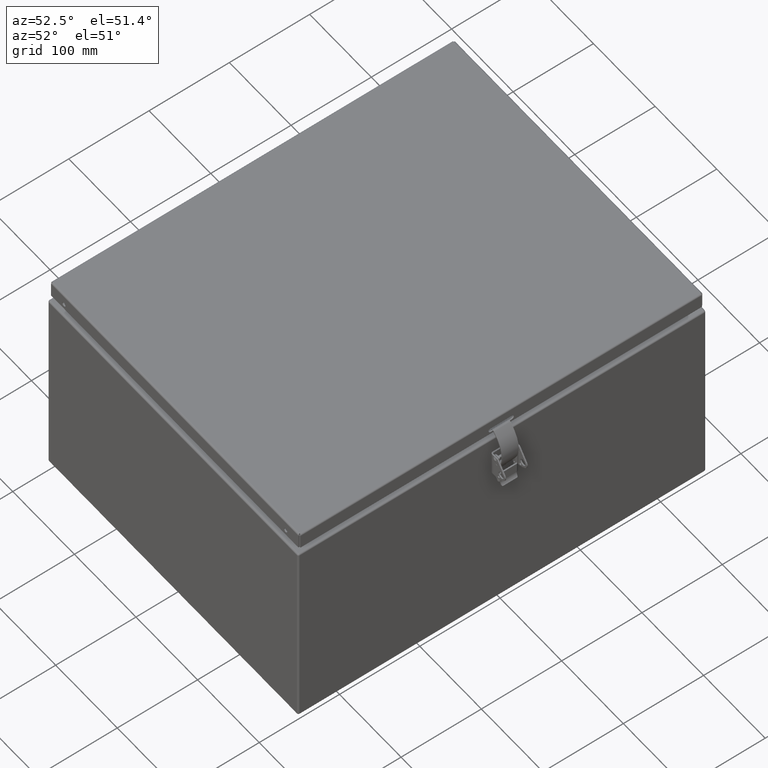
[diagram: clean part render]
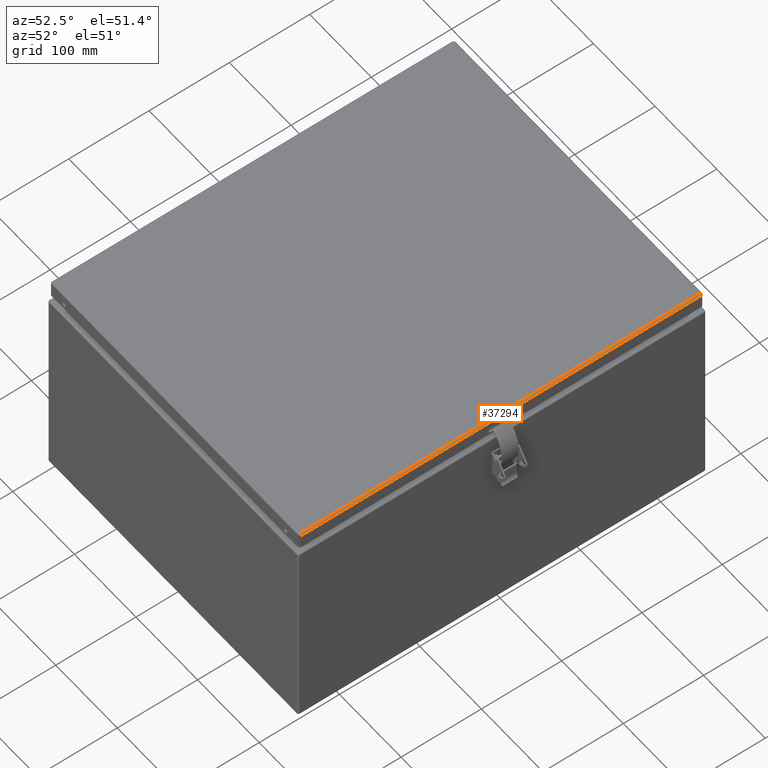
[diagram: same view with one face highlighted and labeled with its STEP entity id]
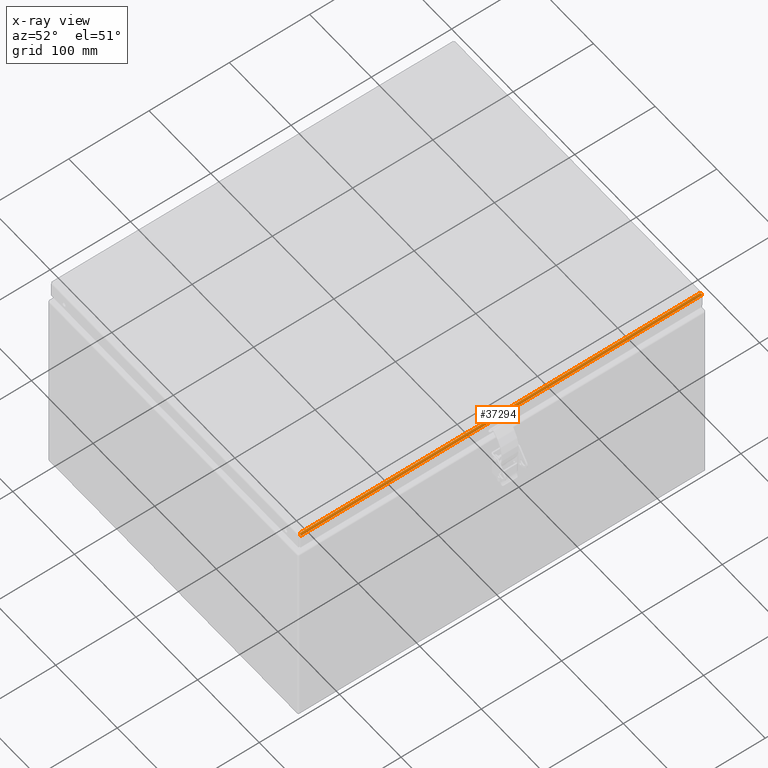
[diagram: x-ray of the same camera — body ghosted, the highlighted face saturated]
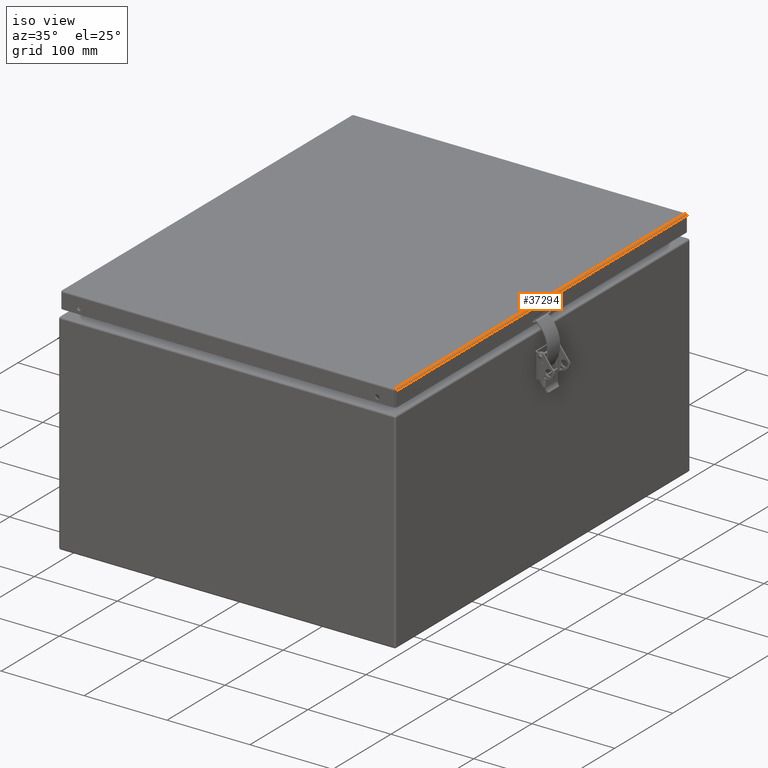
[diagram: same view with one face highlighted and labeled with its STEP entity id]
A machine part, auxiliary view. The second image highlights one B-rep face of the part: STEP entity #37294.
The next image is the same camera in x-ray: the body ghosted, the highlighted face saturated — about 0% of this face is hidden behind the body in this view.
A second angle (iso view) of the same face is appended — the face is thin or edge-on in the first view.
In plain terms, the highlighted cylindrical surface (edge-blend (fillet) strip) has radius 2.1336 mm, axis along (-0, 1, -0).
Its self-contained STEP definition (entity closure, byte-faithful):
#2389=B_SPLINE_CURVE_WITH_KNOTS('',3,(#66266,#66267,#66268,#66269),
 .UNSPECIFIED.,.F.,.F.,(4,4),(-1.,-0.87374082439798),.UNSPECIFIED.);
#2390=B_SPLINE_CURVE_WITH_KNOTS('',3,(#66270,#66271,#66272,#66273,#66274,
#66275,#66276),.UNSPECIFIED.,.F.,.F.,(4,3,4),(-0.87374082439798,-0.571428571428573,
0.),.UNSPECIFIED.);
#2391=B_SPLINE_CURVE_WITH_KNOTS('',3,(#66301,#66302,#66303,#66304,#66305,
#66306,#66307),.UNSPECIFIED.,.F.,.F.,(4,3,4),(-0.873740824397767,-0.571428571428558,
0.),.UNSPECIFIED.);
#2392=B_SPLINE_CURVE_WITH_KNOTS('',3,(#66309,#66310,#66311,#66312),
 .UNSPECIFIED.,.F.,.F.,(4,4),(-1.,-0.873740824397767),.UNSPECIFIED.);
#3854=LINE('',#66351,#6051);
#3855=LINE('',#66354,#6052);
#6051=VECTOR('',#44475,0.393700787401575);
#6052=VECTOR('',#44480,0.393700787401575);
#8187=CYLINDRICAL_SURFACE('',#40199,0.084);
#9360=FACE_OUTER_BOUND('',#11685,.T.);
#11685=EDGE_LOOP('',(#28286,#28287,#28288,#28289,#28290,#28291));
#16130=VERTEX_POINT('',#66095);
#16137=VERTEX_POINT('',#66163);
#16148=VERTEX_POINT('',#66240);
#16150=VERTEX_POINT('',#66265);
#16151=VERTEX_POINT('',#66300);
#16152=VERTEX_POINT('',#66308);
#20475=EDGE_CURVE('',#16148,#16150,#2389,.T.);
#20476=EDGE_CURVE('',#16150,#16130,#2390,.T.);
#20479=EDGE_CURVE('',#16151,#16137,#2391,.T.);
#20480=EDGE_CURVE('',#16152,#16151,#2392,.T.);
#20490=EDGE_CURVE('',#16130,#16137,#3854,.T.);
#20491=EDGE_CURVE('',#16152,#16148,#3855,.T.);
#28286=ORIENTED_EDGE('',*,*,#20491,.F.);
#28287=ORIENTED_EDGE('',*,*,#20480,.T.);
#28288=ORIENTED_EDGE('',*,*,#20479,.T.);
#28289=ORIENTED_EDGE('',*,*,#20490,.F.);
#28290=ORIENTED_EDGE('',*,*,#20476,.F.);
#28291=ORIENTED_EDGE('',*,*,#20475,.F.);
#37294=ADVANCED_FACE('',(#9360),#8187,.T.);
#40199=AXIS2_PLACEMENT_3D('',#66353,#44478,#44479);
#44475=DIRECTION('',(-1.4247070769097E-16,1.,0.));
#44478=DIRECTION('center_axis',(-1.41262048452871E-16,1.,0.));
#44479=DIRECTION('ref_axis',(0.,0.,1.));
#44480=DIRECTION('',(1.41099259635108E-16,-1.,3.74925544731918E-33));
#66095=CARTESIAN_POINT('',(7.875,-9.8175,0.053));
#66163=CARTESIAN_POINT('',(7.875,9.8175,0.053));
#66240=CARTESIAN_POINT('',(7.959,-9.8475,-0.0310000000000036));
#66265=CARTESIAN_POINT('',(7.95735338927684,-9.84371222473183,-0.014449493221815));
#66266=CARTESIAN_POINT('Ctrl Pts',(7.959,-9.8475,-0.0310000000000032));
#66267=CARTESIAN_POINT('Ctrl Pts',(7.959,-9.84623740824394,-0.025446831420728));
#66268=CARTESIAN_POINT('Ctrl Pts',(7.95842813386918,-9.8449748164879,-0.0198923652812686));
#66269=CARTESIAN_POINT('Ctrl Pts',(7.95732081822787,-9.84371222473187,-0.0144444560185124));
#66270=CARTESIAN_POINT('Ctrl Pts',(7.95732081822787,-9.84371222473187,-0.0144444560185124));
#66271=CARTESIAN_POINT('Ctrl Pts',(7.95466948548571,-9.84068910220214,-0.0014000993185436));
#66272=CARTESIAN_POINT('Ctrl Pts',(7.94894839483469,-9.83766597967246,0.0110333616599829));
#66273=CARTESIAN_POINT('Ctrl Pts',(7.94065744040821,-9.83464285714277,0.0213753996259275));
#66274=CARTESIAN_POINT('Ctrl Pts',(7.92498593454908,-9.82892857142848,0.0409238496887101));
#66275=CARTESIAN_POINT('Ctrl Pts',(7.90013274122876,-9.82321428571414,0.0529999999999978));
#66276=CARTESIAN_POINT('Ctrl Pts',(7.87500000000001,-9.8175,0.053));
#66300=CARTESIAN_POINT('',(7.95735338927684,9.84371222473182,-0.0144494932217908));
#66301=CARTESIAN_POINT('Ctrl Pts',(7.95732081822786,9.84371222473192,-0.0144444560184957));
#66302=CARTESIAN_POINT('Ctrl Pts',(7.9546694854857,9.84068910220224,-0.00140009931853851));
#66303=CARTESIAN_POINT('Ctrl Pts',(7.94894839483468,9.83766597967259,0.0110333616599825));
#66304=CARTESIAN_POINT('Ctrl Pts',(7.94065744040822,9.83464285714292,0.0213753996259227));
#66305=CARTESIAN_POINT('Ctrl Pts',(7.92498593454909,9.82892857142869,0.0409238496887096));
#66306=CARTESIAN_POINT('Ctrl Pts',(7.90013274122879,9.8232142857144,0.0529999999999966));
#66307=CARTESIAN_POINT('Ctrl Pts',(7.87500000000001,9.81749999999999,0.0529999999999998));
#66308=CARTESIAN_POINT('',(7.959,9.8475,-0.0310000000000074));
#66309=CARTESIAN_POINT('Ctrl Pts',(7.959,9.8475,-0.0310000000000073));
#66310=CARTESIAN_POINT('Ctrl Pts',(7.959,9.84623740824396,-0.0254468314207265));
#66311=CARTESIAN_POINT('Ctrl Pts',(7.95842813386917,9.84497481648794,-0.0198923652812598));
#66312=CARTESIAN_POINT('Ctrl Pts',(7.95732081822786,9.84371222473192,-0.0144444560184957));
#66351=CARTESIAN_POINT('',(7.875,-4.90875,0.053));
#66353=CARTESIAN_POINT('Origin',(7.875,5.59482469102441E-15,-0.031));
#66354=CARTESIAN_POINT('',(7.959,4.21330469773198E-15,-0.0310000000000027));